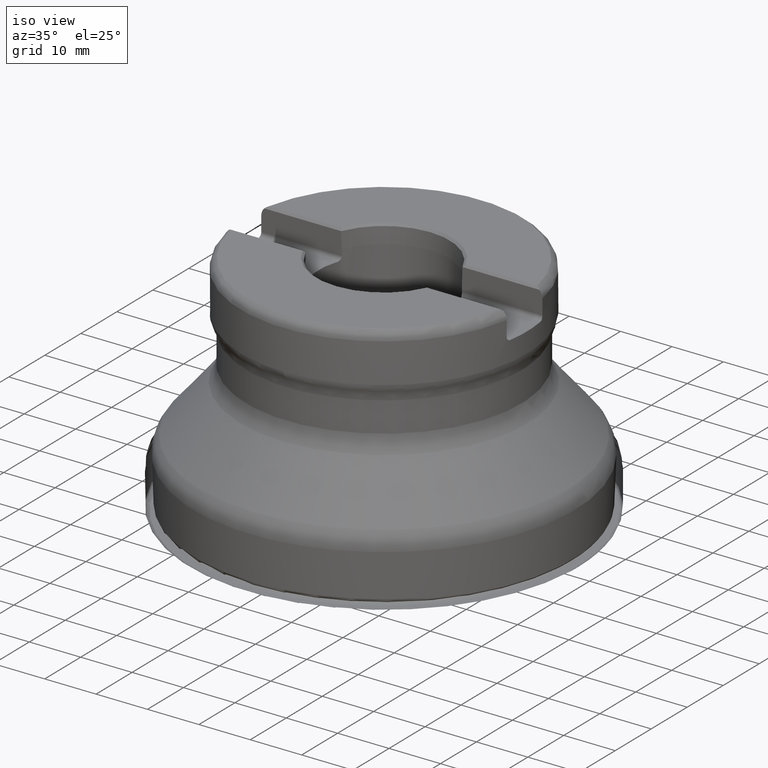
[diagram: clean part render]
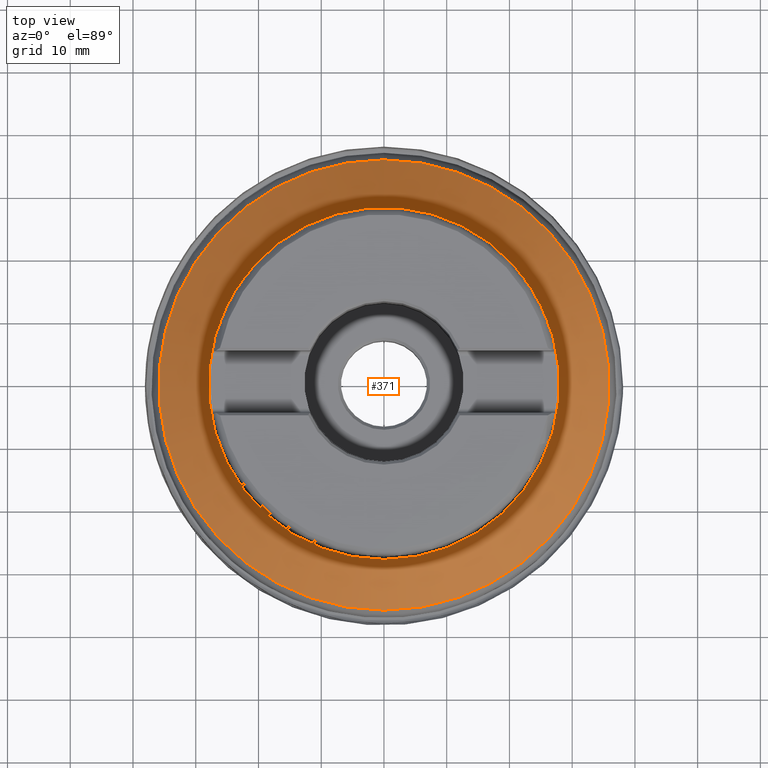
[diagram: tour spotlight — one face highlighted and labeled with its STEP entity id]
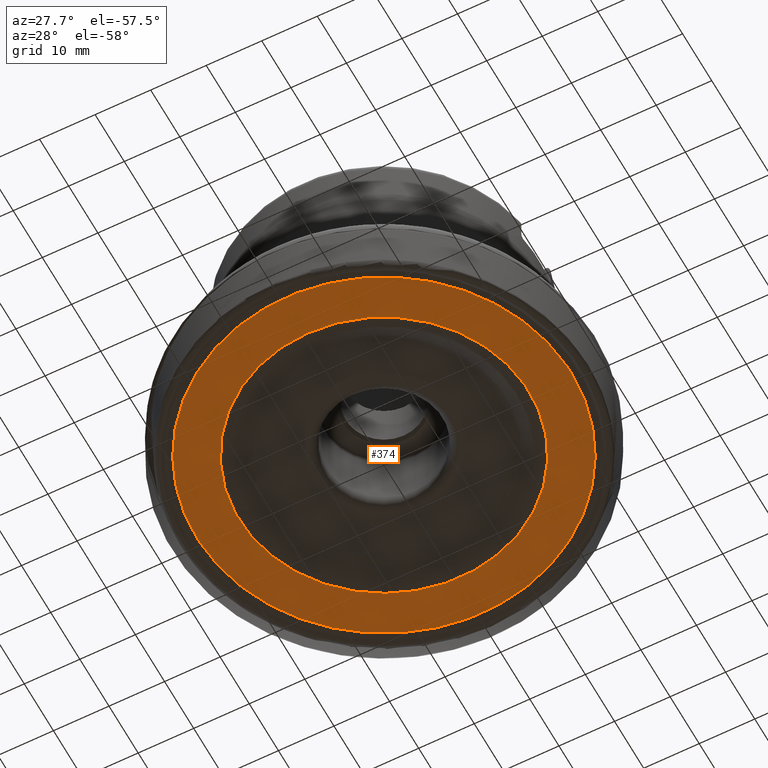
[diagram: tour spotlight — one face highlighted and labeled with its STEP entity id]
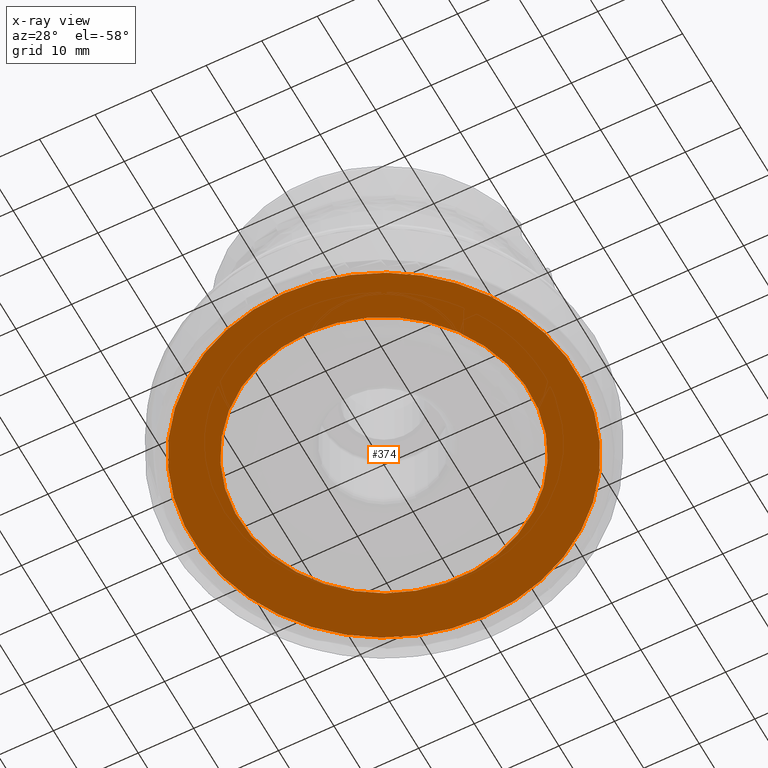
[diagram: x-ray of the same camera — body ghosted, this tour face saturated]
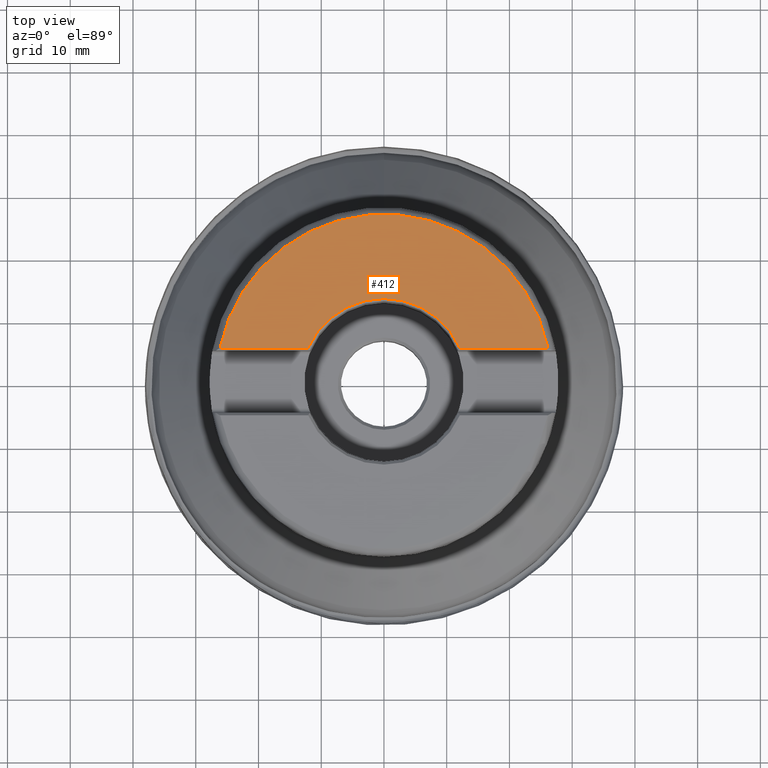
[diagram: tour spotlight — one face highlighted and labeled with its STEP entity id]
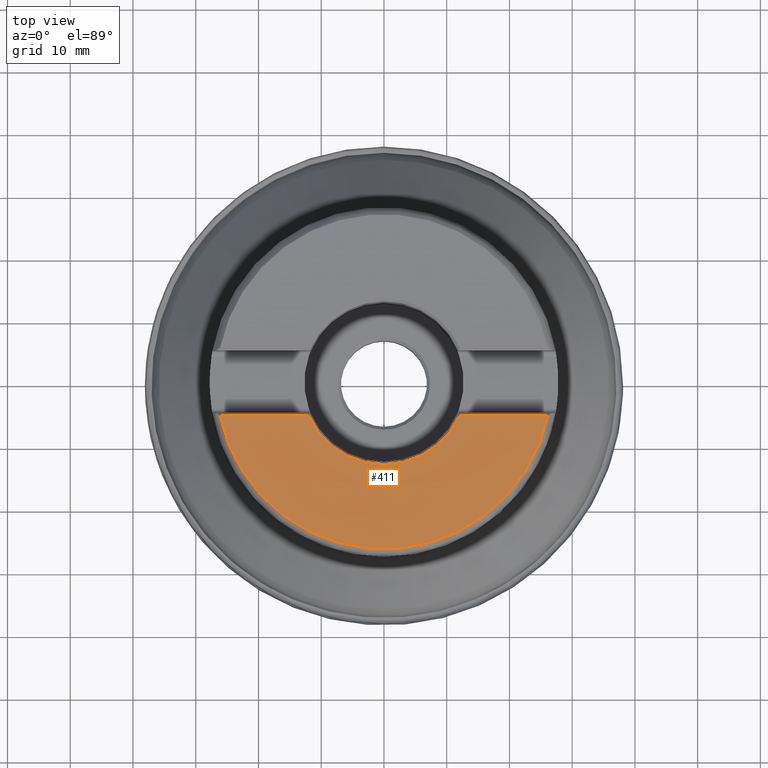
[diagram: tour spotlight — one face highlighted and labeled with its STEP entity id]
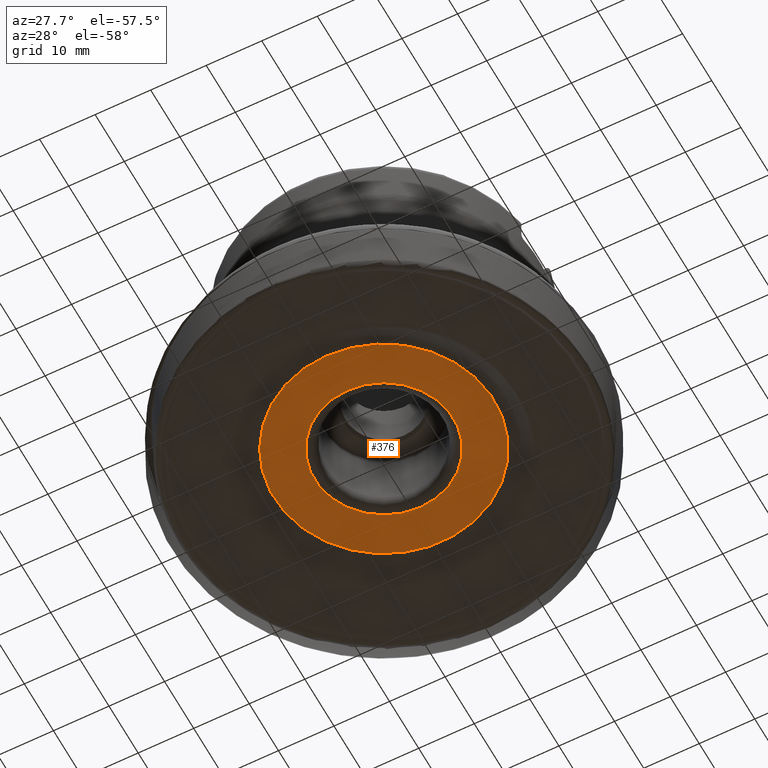
[diagram: tour spotlight — one face highlighted and labeled with its STEP entity id]
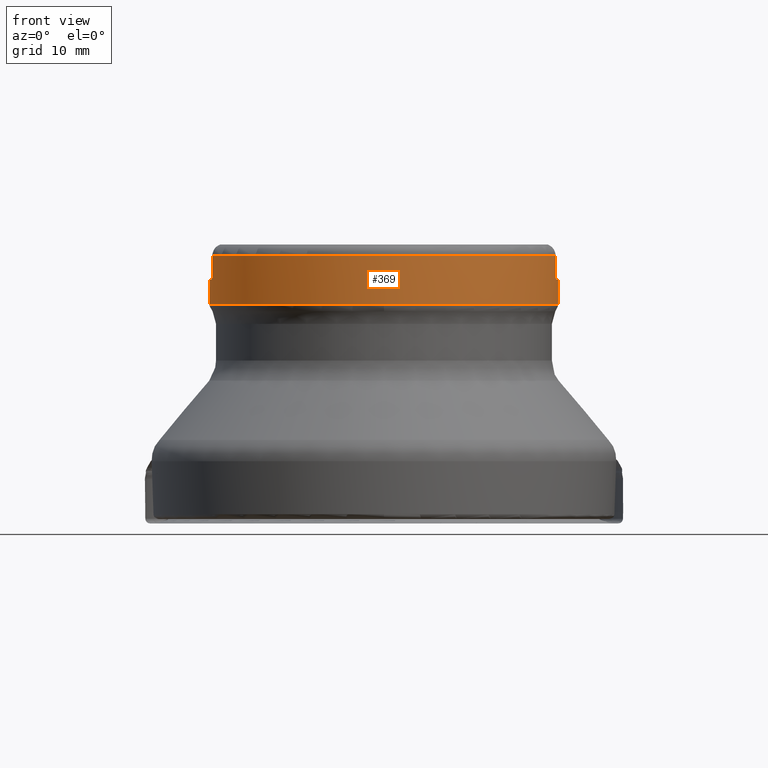
[diagram: tour spotlight — one face highlighted and labeled with its STEP entity id]
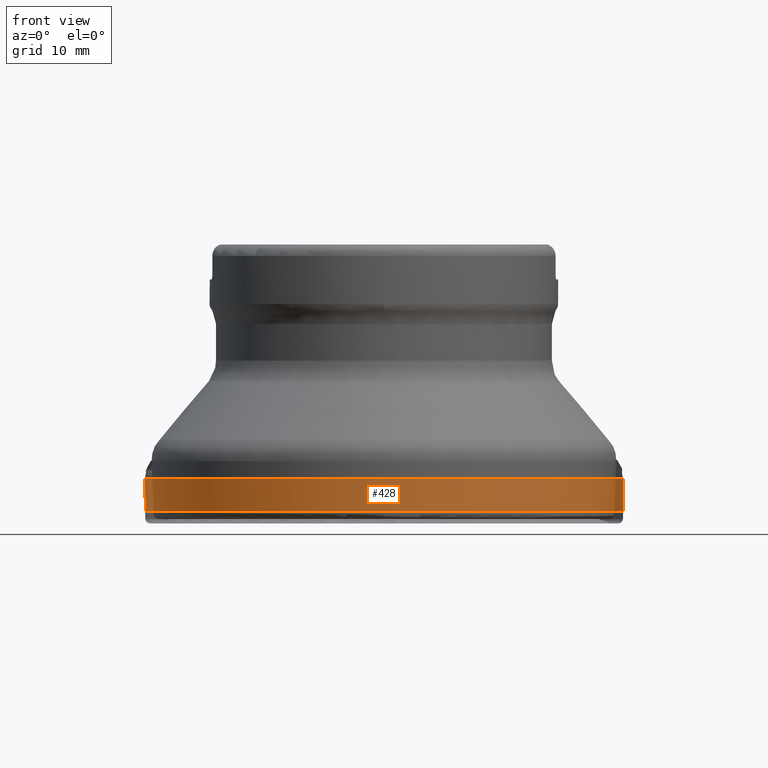
[diagram: tour spotlight — one face highlighted and labeled with its STEP entity id]
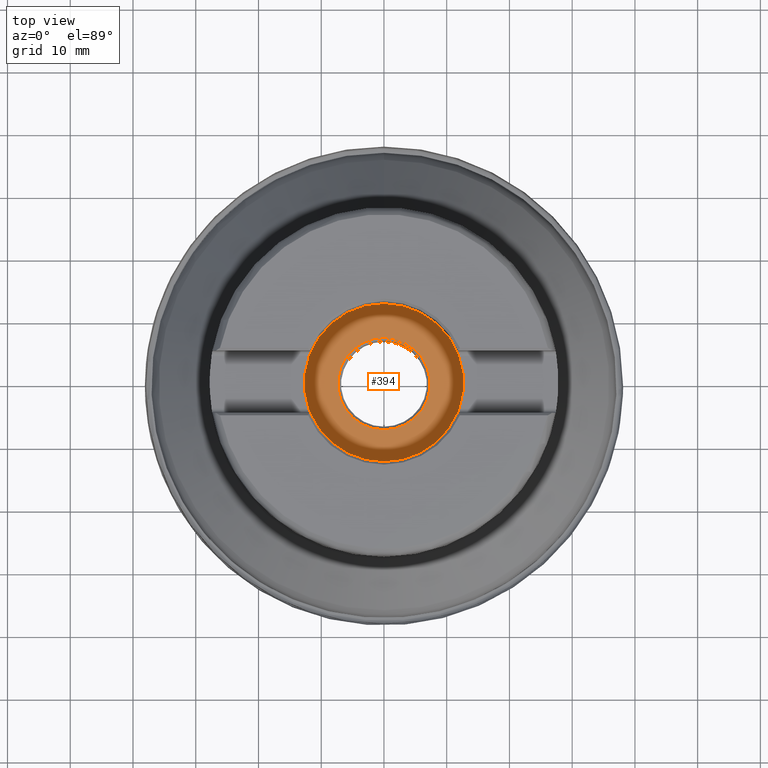
[diagram: tour spotlight — one face highlighted and labeled with its STEP entity id]
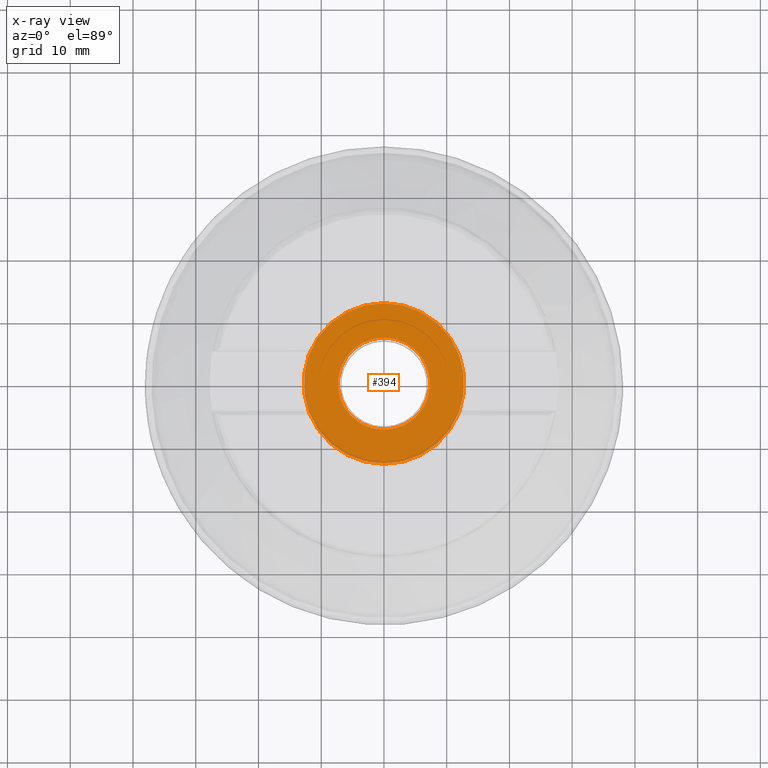
[diagram: x-ray of the same camera — body ghosted, this tour face saturated]
A machine part: a face-by-face anatomy tour. The part has 76 B-rep faces; the first image is the clean iso view, then the 8 largest visible faces are spotlighted one at a time (largest first), each with its STEP entity span.

Face 1 — top view, entity #371. In plain terms, the highlighted conical surface has half-angle 40 deg.
Definition (entity closure, byte-faithful):
#172=FACE_BOUND('',#486,.T.);
#173=FACE_BOUND('',#487,.T.);
#278=CONICAL_SURFACE('',#1224,26.8,40.);
#371=ADVANCED_FACE('',(#172,#173),#278,.T.);
#486=EDGE_LOOP('',(#726));
#487=EDGE_LOOP('',(#727));
#617=CIRCLE('',#1222,27.9697777844051);
#618=CIRCLE('',#1223,35.8883977884968);
#726=ORIENTED_EDGE('',*,*,#1051,.T.);
#727=ORIENTED_EDGE('',*,*,#1052,.T.);
#944=VERTEX_POINT('',#2070);
#945=VERTEX_POINT('',#2072);
#1051=EDGE_CURVE('',#944,#944,#617,.T.);
#1052=EDGE_CURVE('',#945,#945,#618,.T.);
#1222=AXIS2_PLACEMENT_3D('',#2069,#1386,#1387);
#1223=AXIS2_PLACEMENT_3D('',#2071,#1388,#1389);
#1224=AXIS2_PLACEMENT_3D('',#2073,#1390,#1391);
#1386=DIRECTION('',(0.,-1.17145536458252E-15,-1.));
#1387=DIRECTION('',(0.,1.,-1.11638436344648E-15));
#1388=DIRECTION('',(0.,1.17145536458252E-15,1.));
#1389=DIRECTION('',(0.,-1.,1.16007863234251E-15));
#1390=DIRECTION('',(0.,-1.17145536458252E-15,-1.));
#1391=DIRECTION('',(0.,1.,-1.09785064066006E-15));
#2069=CARTESIAN_POINT('',(0.,2.6657302222784E-14,22.7557131314892));
#2070=CARTESIAN_POINT('',(0.,27.9697777844051,22.7557131314891));
#2071=CARTESIAN_POINT('',(0.,1.56022265926484E-14,13.3186692932245));
#2072=CARTESIAN_POINT('',(0.,-35.8883977884968,13.3186692932246));
#2073=CARTESIAN_POINT('',(0.,2.82904127736588E-14,24.1498000085909));

Face 2 — auxiliary view, entity #374. An x-ray twin of the same camera follows (body ghosted, this face saturated) — the face is partly hidden behind the body. In plain terms, the highlighted planar face has unit normal (0, 0, 1).
Definition (entity closure, byte-faithful):
#178=FACE_BOUND('',#492,.T.);
#179=FACE_BOUND('',#493,.T.);
#290=PLANE('',#1233);
#374=ADVANCED_FACE('',(#178,#179),#290,.F.);
#492=EDGE_LOOP('',(#732));
#493=EDGE_LOOP('',(#733));
#623=CIRCLE('',#1231,26.1084733132147);
#624=CIRCLE('',#1232,34.484916865209);
#732=ORIENTED_EDGE('',*,*,#1057,.T.);
#733=ORIENTED_EDGE('',*,*,#1058,.T.);
#950=VERTEX_POINT('',#2085);
#951=VERTEX_POINT('',#2087);
#1057=EDGE_CURVE('',#950,#950,#623,.T.);
#1058=EDGE_CURVE('',#951,#951,#624,.T.);
#1231=AXIS2_PLACEMENT_3D('',#2084,#1404,#1405);
#1232=AXIS2_PLACEMENT_3D('',#2086,#1406,#1407);
#1233=AXIS2_PLACEMENT_3D('',#2088,#1408,#1409);
#1404=DIRECTION('',(0.,1.17145536458252E-15,1.));
#1405=DIRECTION('',(0.,-1.,1.17105664882428E-15));
#1406=DIRECTION('',(0.,-1.17145536458252E-15,-1.));
#1407=DIRECTION('',(0.,-1.,1.1695641017233E-15));
#1408=DIRECTION('',(0.,1.17145536458252E-15,1.));
#1409=DIRECTION('',(0.,-1.,1.17137202715334E-15));
#2084=CARTESIAN_POINT('',(0.,1.28860090104078E-15,1.1));
#2085=CARTESIAN_POINT('',(0.,-26.1084733132147,1.10000000000003));
#2086=CARTESIAN_POINT('',(0.,1.28860090104078E-15,1.1));
#2087=CARTESIAN_POINT('',(0.,-34.484916865209,1.10000000000004));
#2088=CARTESIAN_POINT('',(35.1047207679275,1.28860090104078E-15,1.1));

Face 3 — top view, entity #412. In plain terms, the highlighted planar face has unit normal (0, 0, 1).
Definition (entity closure, byte-faithful):
#302=PLANE('',#1293);
#307=LINE('',#1933,#334);
#309=LINE('',#1953,#336);
#334=VECTOR('',#1332,1.);
#336=VECTOR('',#1344,1.);
#412=ADVANCED_FACE('',(#473),#302,.T.);
#473=FACE_OUTER_BOUND('',#555,.T.);
#555=EDGE_LOOP('',(#857,#858,#859,#860));
#604=CIRCLE('',#1195,26.6717797887081);
#608=CIRCLE('',#1203,13.2368226782816);
#857=ORIENTED_EDGE('',*,*,#1007,.F.);
#858=ORIENTED_EDGE('',*,*,#1025,.F.);
#859=ORIENTED_EDGE('',*,*,#1022,.F.);
#860=ORIENTED_EDGE('',*,*,#1018,.F.);
#910=VERTEX_POINT('',#1855);
#911=VERTEX_POINT('',#1857);
#921=VERTEX_POINT('',#1934);
#924=VERTEX_POINT('',#1945);
#1007=EDGE_CURVE('',#910,#911,#604,.T.);
#1018=EDGE_CURVE('',#911,#921,#307,.T.);
#1022=EDGE_CURVE('',#921,#924,#608,.T.);
#1025=EDGE_CURVE('',#924,#910,#309,.T.);
#1195=AXIS2_PLACEMENT_3D('',#1856,#1320,#1321);
#1203=AXIS2_PLACEMENT_3D('',#1944,#1338,#1339);
#1293=AXIS2_PLACEMENT_3D('',#2288,#1540,#1541);
#1320=DIRECTION('',(0.,-1.17145536458252E-15,-1.));
#1321=DIRECTION('',(0.,-1.,1.30079319019515E-15));
#1332=DIRECTION('',(-1.,0.,0.));
#1338=DIRECTION('',(0.,1.17145536458252E-15,1.));
#1339=DIRECTION('',(0.,-1.,1.04842288403429E-15));
#1344=DIRECTION('',(-1.,0.,0.));
#1540=DIRECTION('',(0.,1.17145536458252E-15,1.));
#1541=DIRECTION('',(0.,-1.,1.17267306976032E-15));
#1855=CARTESIAN_POINT('',(-26.1266264967025,5.36499999999294,44.4499999999929));
#1856=CARTESIAN_POINT('',(0.,5.20711909556932E-14,44.45));
#1857=CARTESIAN_POINT('',(26.1266264966842,5.36500000000004,44.45));
#1933=CARTESIAN_POINT('',(-39.,5.36500000000004,44.45));
#1934=CARTESIAN_POINT('',(12.1008367320723,5.36500000000004,44.45));
#1944=CARTESIAN_POINT('',(0.,5.20711909556932E-14,44.45));
#1945=CARTESIAN_POINT('',(-12.1008367320723,5.36500000000004,44.45));
#1953=CARTESIAN_POINT('',(-39.,5.36500000000004,44.45));
#2288=CARTESIAN_POINT('',(0.,5.20711909556932E-14,44.45));

Face 4 — top view, entity #411. In plain terms, the highlighted planar face has unit normal (0, 0, 1).
Definition (entity closure, byte-faithful):
#301=PLANE('',#1292);
#311=LINE('',#1958,#338);
#313=LINE('',#1978,#340);
#338=VECTOR('',#1350,1.);
#340=VECTOR('',#1362,1.);
#411=ADVANCED_FACE('',(#472),#301,.T.);
#472=FACE_OUTER_BOUND('',#554,.T.);
#554=EDGE_LOOP('',(#853,#854,#855,#856));
#606=CIRCLE('',#1198,26.6717797887081);
#610=CIRCLE('',#1210,13.2368226782816);
#853=ORIENTED_EDGE('',*,*,#1013,.F.);
#854=ORIENTED_EDGE('',*,*,#1035,.F.);
#855=ORIENTED_EDGE('',*,*,#1032,.F.);
#856=ORIENTED_EDGE('',*,*,#1028,.F.);
#916=VERTEX_POINT('',#1898);
#917=VERTEX_POINT('',#1900);
#927=VERTEX_POINT('',#1959);
#930=VERTEX_POINT('',#1970);
#1013=EDGE_CURVE('',#916,#917,#606,.T.);
#1028=EDGE_CURVE('',#917,#927,#311,.T.);
#1032=EDGE_CURVE('',#927,#930,#610,.T.);
#1035=EDGE_CURVE('',#930,#916,#313,.T.);
#1198=AXIS2_PLACEMENT_3D('',#1899,#1326,#1327);
#1210=AXIS2_PLACEMENT_3D('',#1969,#1356,#1357);
#1292=AXIS2_PLACEMENT_3D('',#2287,#1538,#1539);
#1326=DIRECTION('',(0.,-1.17145536458252E-15,-1.));
#1327=DIRECTION('',(0.,-1.,1.30079319019515E-15));
#1350=DIRECTION('',(1.,0.,0.));
#1356=DIRECTION('',(0.,1.17145536458252E-15,1.));
#1357=DIRECTION('',(0.,-1.,1.04842288403429E-15));
#1362=DIRECTION('',(1.,0.,0.));
#1538=DIRECTION('',(0.,1.17145536458252E-15,1.));
#1539=DIRECTION('',(0.,-1.,1.17267306976032E-15));
#1898=CARTESIAN_POINT('',(26.1266264967107,-5.36499999998929,44.4499999999894));
#1899=CARTESIAN_POINT('',(0.,5.20711909556932E-14,44.45));
#1900=CARTESIAN_POINT('',(-26.1266264966842,-5.36499999999995,44.45));
#1958=CARTESIAN_POINT('',(-39.,-5.36499999999995,44.45));
#1959=CARTESIAN_POINT('',(-12.1008367320723,-5.36499999999995,44.45));
#1969=CARTESIAN_POINT('',(0.,5.20711909556932E-14,44.45));
#1970=CARTESIAN_POINT('',(12.1008367320723,-5.36499999999995,44.45));
#1978=CARTESIAN_POINT('',(-39.,-5.36499999999995,44.45));
#2287=CARTESIAN_POINT('',(0.,5.20711909556932E-14,44.45));

Face 5 — auxiliary view, entity #376. In plain terms, the highlighted planar face has unit normal (0, 0, 1).
Definition (entity closure, byte-faithful):
#182=FACE_BOUND('',#496,.T.);
#183=FACE_BOUND('',#497,.T.);
#291=PLANE('',#1239);
#376=ADVANCED_FACE('',(#182,#183),#291,.F.);
#496=EDGE_LOOP('',(#736));
#497=EDGE_LOOP('',(#737));
#627=CIRCLE('',#1237,19.8169635378171);
#628=CIRCLE('',#1238,12.5);
#736=ORIENTED_EDGE('',*,*,#1061,.T.);
#737=ORIENTED_EDGE('',*,*,#1062,.T.);
#954=VERTEX_POINT('',#2095);
#955=VERTEX_POINT('',#2097);
#1061=EDGE_CURVE('',#954,#954,#627,.T.);
#1062=EDGE_CURVE('',#955,#955,#628,.T.);
#1237=AXIS2_PLACEMENT_3D('',#2094,#1416,#1417);
#1238=AXIS2_PLACEMENT_3D('',#2096,#1418,#1419);
#1239=AXIS2_PLACEMENT_3D('',#2098,#1420,#1421);
#1416=DIRECTION('',(0.,-1.17145536458252E-15,-1.));
#1417=DIRECTION('',(0.,-1.,1.18175354569313E-15));
#1418=DIRECTION('',(0.,1.17145536458252E-15,1.));
#1419=DIRECTION('',(0.,-1.,1.17961196366423E-15));
#1420=DIRECTION('',(0.,1.17145536458252E-15,1.));
#1421=DIRECTION('',(0.,-1.,1.17137202715334E-15));
#2094=CARTESIAN_POINT('',(0.,3.51436609374757E-15,3.));
#2095=CARTESIAN_POINT('',(0.,-19.8169635378171,3.00000000000002));
#2096=CARTESIAN_POINT('',(0.,3.51436609374757E-15,3.));
#2097=CARTESIAN_POINT('',(0.,-12.5,3.00000000000002));
#2098=CARTESIAN_POINT('',(20.9254368510318,3.51436609374757E-15,3.));

Face 6 — front view, entity #369. In plain terms, the highlighted cylindrical surface (bore or boss wall) has radius 27.8 mm, axis along (0, -0, -1).
Definition (entity closure, byte-faithful):
#158=CYLINDRICAL_SURFACE('',#1218,27.8);
#168=FACE_BOUND('',#482,.T.);
#169=FACE_BOUND('',#483,.T.);
#315=LINE('',#1985,#342);
#316=LINE('',#2023,#343);
#317=LINE('',#2024,#344);
#318=LINE('',#2062,#345);
#342=VECTOR('',#1370,1.);
#343=VECTOR('',#1373,1.);
#344=VECTOR('',#1374,1.);
#345=VECTOR('',#1377,1.);
#369=ADVANCED_FACE('',(#168,#169),#158,.T.);
#482=EDGE_LOOP('',(#711));
#483=EDGE_LOOP('',(#712,#713,#714,#715,#716,#717,#718,#719,#720,#721,#722,
#723));
#605=CIRCLE('',#1196,27.8);
#607=CIRCLE('',#1199,27.8);
#612=CIRCLE('',#1215,27.8);
#613=CIRCLE('',#1216,27.8);
#614=CIRCLE('',#1217,27.8);
#711=ORIENTED_EDGE('',*,*,#1038,.T.);
#712=ORIENTED_EDGE('',*,*,#1039,.F.);
#713=ORIENTED_EDGE('',*,*,#1040,.T.);
#714=ORIENTED_EDGE('',*,*,#1041,.F.);
#715=ORIENTED_EDGE('',*,*,#1042,.T.);
#716=ORIENTED_EDGE('',*,*,#1043,.F.);
#717=ORIENTED_EDGE('',*,*,#1016,.T.);
#718=ORIENTED_EDGE('',*,*,#1044,.F.);
#719=ORIENTED_EDGE('',*,*,#1045,.T.);
#720=ORIENTED_EDGE('',*,*,#1046,.F.);
#721=ORIENTED_EDGE('',*,*,#1047,.T.);
#722=ORIENTED_EDGE('',*,*,#1048,.F.);
#723=ORIENTED_EDGE('',*,*,#1010,.T.);
#913=VERTEX_POINT('',#1876);
#914=VERTEX_POINT('',#1878);
#919=VERTEX_POINT('',#1919);
#920=VERTEX_POINT('',#1921);
#933=VERTEX_POINT('',#1984);
#934=VERTEX_POINT('',#1986);
#935=VERTEX_POINT('',#2003);
#936=VERTEX_POINT('',#2005);
#937=VERTEX_POINT('',#2022);
#938=VERTEX_POINT('',#2025);
#939=VERTEX_POINT('',#2042);
#940=VERTEX_POINT('',#2044);
#941=VERTEX_POINT('',#2061);
#1010=EDGE_CURVE('',#914,#913,#605,.T.);
#1016=EDGE_CURVE('',#920,#919,#607,.T.);
#1038=EDGE_CURVE('',#933,#933,#612,.T.);
#1039=EDGE_CURVE('',#934,#913,#315,.T.);
#1040=EDGE_CURVE('',#934,#935,#1161,.T.);
#1041=EDGE_CURVE('',#936,#935,#613,.T.);
#1042=EDGE_CURVE('',#936,#937,#1162,.T.);
#1043=EDGE_CURVE('',#920,#937,#316,.T.);
#1044=EDGE_CURVE('',#938,#919,#317,.T.);
#1045=EDGE_CURVE('',#938,#939,#1163,.T.);
#1046=EDGE_CURVE('',#940,#939,#614,.T.);
#1047=EDGE_CURVE('',#940,#941,#1164,.T.);
#1048=EDGE_CURVE('',#914,#941,#318,.T.);
#1161=B_SPLINE_CURVE_WITH_KNOTS('',3,(#1987,#1988,#1989,#1990,#1991,#1992,
#1993,#1994,#1995,#1996,#1997,#1998,#1999,#2000,#2001,#2002),
 .UNSPECIFIED.,.F.,.F.,(4,3,3,3,3,4),(0.,0.211069163491889,0.422033858925781,
0.634635847700906,0.850410504468207,1.),.UNSPECIFIED.);
#1162=B_SPLINE_CURVE_WITH_KNOTS('',3,(#2006,#2007,#2008,#2009,#2010,#2011,
#2012,#2013,#2014,#2015,#2016,#2017,#2018,#2019,#2020,#2021),
 .UNSPECIFIED.,.F.,.F.,(4,3,3,3,3,4),(0.,0.218349211184795,0.43673649299723,
0.654405007356203,0.869343251864531,1.),.UNSPECIFIED.);
#1163=B_SPLINE_CURVE_WITH_KNOTS('',3,(#2026,#2027,#2028,#2029,#2030,#2031,
#2032,#2033,#2034,#2035,#2036,#2037,#2038,#2039,#2040,#2041),
 .UNSPECIFIED.,.F.,.F.,(4,3,3,3,3,4),(0.,0.211069163491889,0.42203385892578,
0.634635847700905,0.850410504468206,1.),.UNSPECIFIED.);
#1164=B_SPLINE_CURVE_WITH_KNOTS('',3,(#2045,#2046,#2047,#2048,#2049,#2050,
#2051,#2052,#2053,#2054,#2055,#2056,#2057,#2058,#2059,#2060),
 .UNSPECIFIED.,.F.,.F.,(4,3,3,3,3,4),(0.,0.218349211184793,0.436736492997223,
0.654405007356197,0.869343251864531,1.),.UNSPECIFIED.);
#1196=AXIS2_PLACEMENT_3D('',#1877,#1322,#1323);
#1199=AXIS2_PLACEMENT_3D('',#1920,#1328,#1329);
#1215=AXIS2_PLACEMENT_3D('',#1983,#1368,#1369);
#1216=AXIS2_PLACEMENT_3D('',#2004,#1371,#1372);
#1217=AXIS2_PLACEMENT_3D('',#2043,#1375,#1376);
#1218=AXIS2_PLACEMENT_3D('',#2063,#1378,#1379);
#1322=DIRECTION('',(0.,-1.17145536458252E-15,-1.));
#1323=DIRECTION('',(0.,1.,-1.24800250070274E-15));
#1328=DIRECTION('',(0.,-1.17145536458252E-15,-1.));
#1329=DIRECTION('',(0.,1.,-1.24800250070274E-15));
#1368=DIRECTION('',(0.,1.17145536458252E-15,1.));
#1369=DIRECTION('',(0.,-1.,1.24800250070274E-15));
#1370=DIRECTION('',(0.,1.17145536458252E-15,1.));
#1371=DIRECTION('',(0.,1.17145536458252E-15,1.));
#1372=DIRECTION('',(0.,-1.,1.24800250070274E-15));
#1373=DIRECTION('',(0.,-1.17145536458252E-15,-1.));
#1374=DIRECTION('',(0.,1.17145536458252E-15,1.));
#1375=DIRECTION('',(0.,1.17145536458252E-15,1.));
#1376=DIRECTION('',(0.,-1.,1.24800250070274E-15));
#1377=DIRECTION('',(0.,-1.17145536458252E-15,-1.));
#1378=DIRECTION('',(0.,-1.17145536458252E-15,-1.));
#1379=DIRECTION('',(0.,1.,-1.17145536458252E-15));
#1876=CARTESIAN_POINT('',(27.3530395934346,4.96500000000005,42.65));
#1877=CARTESIAN_POINT('',(0.,4.99625712994447E-14,42.65));
#1878=CARTESIAN_POINT('',(-27.3530395934346,4.96500000000005,42.65));
#1919=CARTESIAN_POINT('',(-27.3530395934346,-4.96499999999995,42.65));
#1920=CARTESIAN_POINT('',(0.,4.99625712994447E-14,42.65));
#1921=CARTESIAN_POINT('',(27.3530395934346,-4.96499999999995,42.65));
#1983=CARTESIAN_POINT('',(0.,4.09756660999428E-14,34.9784271247462));
#1984=CARTESIAN_POINT('',(0.,-27.8,34.9784271247462));
#1985=CARTESIAN_POINT('',(27.3530395934346,4.96500000000001,-4.8592867675717E-15));
#1986=CARTESIAN_POINT('',(27.3530395934346,4.96500000000004,39.69));
#1987=CARTESIAN_POINT('',(27.3530395934346,4.96500000000004,39.69));
#1988=CARTESIAN_POINT('',(27.3530395934346,4.96500000000004,39.6014828198));
#1989=CARTESIAN_POINT('',(27.355795884701,4.94987822759739,39.5117461934698));
#1990=CARTESIAN_POINT('',(27.3609958358265,4.92096605067377,39.4282456681757));
#1991=CARTESIAN_POINT('',(27.3661943475718,4.89206187682854,39.3447682563695));
#1992=CARTESIAN_POINT('',(27.3739670457912,4.8486049304503,39.26523560333));
#1993=CARTESIAN_POINT('',(27.3834781160581,4.79428057870725,39.1960304126144));
#1994=CARTESIAN_POINT('',(27.3930635749251,4.73953134181815,39.126283949769));
#1995=CARTESIAN_POINT('',(27.4046620047054,4.67227668630608,39.0651246437668));
#1996=CARTESIAN_POINT('',(27.4171151867849,4.59802075186354,39.0173239795744));
#1997=CARTESIAN_POINT('',(27.429751472875,4.52267300335135,38.9688204835061));
#1998=CARTESIAN_POINT('',(27.4436022201549,4.4380687156529,38.9327464023427));
#1999=CARTESIAN_POINT('',(27.4573867560448,4.35108176537469,38.9119424336239));
#2000=CARTESIAN_POINT('',(27.4670123714279,4.29033957329675,38.8974152124734));
#2001=CARTESIAN_POINT('',(27.4767612980382,4.22747937631335,38.89));
#2002=CARTESIAN_POINT('',(27.4862288246314,4.16500000000004,38.89));
#2003=CARTESIAN_POINT('',(27.4862288246314,4.16500000000004,38.89));
#2004=CARTESIAN_POINT('',(0.,4.55578991286144E-14,38.89));
#2005=CARTESIAN_POINT('',(27.4862288246314,-4.16499999999995,38.89));
#2006=CARTESIAN_POINT('',(27.4862288246314,-4.16499999999995,38.89));
#2007=CARTESIAN_POINT('',(27.472509685048,-4.25553719324552,38.89));
#2008=CARTESIAN_POINT('',(27.4581298000349,-4.34724928567559,38.9057930579513));
#2009=CARTESIAN_POINT('',(27.4443505378966,-4.43256399311454,38.9360706202909));
#2010=CARTESIAN_POINT('',(27.4305700953269,-4.5178860092289,38.9663507764256));
#2011=CARTESIAN_POINT('',(27.4170138199474,-4.59918038398189,39.011966124374));
#2012=CARTESIAN_POINT('',(27.4050099640804,-4.66962834373955,39.0692341546971));
#2013=CARTESIAN_POINT('',(27.393047436125,-4.73983375917746,39.1263050176997));
#2014=CARTESIAN_POINT('',(27.3823031090762,-4.80122665826448,39.1965685093854));
#2015=CARTESIAN_POINT('',(27.3739371531161,-4.84846003770786,39.2742087340308));
#2016=CARTESIAN_POINT('',(27.3656754733331,-4.89510468392516,39.3508812239837));
#2017=CARTESIAN_POINT('',(27.3595133791822,-4.92923764985327,39.4369146745888));
#2018=CARTESIAN_POINT('',(27.3561545553782,-4.94780839789294,39.5250423927543));
#2019=CARTESIAN_POINT('',(27.3540938691232,-4.95920181638232,39.5791100033551));
#2020=CARTESIAN_POINT('',(27.3530395934346,-4.96499999999997,39.6347065742715));
#2021=CARTESIAN_POINT('',(27.3530395934346,-4.96499999999995,39.69));
#2022=CARTESIAN_POINT('',(27.3530395934346,-4.96499999999995,39.69));
#2023=CARTESIAN_POINT('',(27.3530395934346,-4.96499999999998,3.42380309120087E-15));
#2024=CARTESIAN_POINT('',(-27.3530395934346,-4.96499999999998,3.42380309120087E-15));
#2025=CARTESIAN_POINT('',(-27.3530395934346,-4.96499999999995,39.69));
#2026=CARTESIAN_POINT('',(-27.3530395934346,-4.96499999999995,39.69));
#2027=CARTESIAN_POINT('',(-27.3530395934346,-4.96499999999995,39.6014828198));
#2028=CARTESIAN_POINT('',(-27.355795884701,-4.9498782275973,39.5117461934698));
#2029=CARTESIAN_POINT('',(-27.3609958358265,-4.92096605067369,39.4282456681757));
#2030=CARTESIAN_POINT('',(-27.3661943475718,-4.89206187682846,39.3447682563695));
#2031=CARTESIAN_POINT('',(-27.3739670457912,-4.84860493045021,39.26523560333));
#2032=CARTESIAN_POINT('',(-27.3834781160581,-4.79428057870716,39.1960304126144));
#2033=CARTESIAN_POINT('',(-27.3930635749251,-4.73953134181806,39.126283949769));
#2034=CARTESIAN_POINT('',(-27.4046620047054,-4.67227668630599,39.0651246437668));
#2035=CARTESIAN_POINT('',(-27.4171151867849,-4.59802075186345,39.0173239795744));
#2036=CARTESIAN_POINT('',(-27.429751472875,-4.52267300335126,38.9688204835061));
#2037=CARTESIAN_POINT('',(-27.4436022201549,-4.43806871565281,38.9327464023427));
#2038=CARTESIAN_POINT('',(-27.4573867560448,-4.3510817653746,38.9119424336239));
#2039=CARTESIAN_POINT('',(-27.4670123714279,-4.29033957329666,38.8974152124734));
#2040=CARTESIAN_POINT('',(-27.4767612980382,-4.22747937631326,38.89));
#2041=CARTESIAN_POINT('',(-27.4862288246314,-4.16499999999995,38.89));
#2042=CARTESIAN_POINT('',(-27.4862288246314,-4.16499999999995,38.89));
#2043=CARTESIAN_POINT('',(0.,4.55578991286144E-14,38.89));
#2044=CARTESIAN_POINT('',(-27.4862288246314,4.16500000000004,38.89));
#2045=CARTESIAN_POINT('',(-27.4862288246314,4.16500000000004,38.89));
#2046=CARTESIAN_POINT('',(-27.472509685048,4.25553719324561,38.89));
#2047=CARTESIAN_POINT('',(-27.4581298000349,4.34724928567568,38.9057930579513));
#2048=CARTESIAN_POINT('',(-27.4443505378966,4.43256399311463,38.9360706202909));
#2049=CARTESIAN_POINT('',(-27.4305700953269,4.51788600922899,38.9663507764256));
#2050=CARTESIAN_POINT('',(-27.4170138199474,4.59918038398198,39.011966124374));
#2051=CARTESIAN_POINT('',(-27.4050099640804,4.66962834373963,39.0692341546971));
#2052=CARTESIAN_POINT('',(-27.393047436125,4.73983375917755,39.1263050176997));
#2053=CARTESIAN_POINT('',(-27.3823031090762,4.80122665826457,39.1965685093853));
#2054=CARTESIAN_POINT('',(-27.3739371531161,4.84846003770795,39.2742087340307));
#2055=CARTESIAN_POINT('',(-27.3656754733331,4.89510468392525,39.3508812239837));
#2056=CARTESIAN_POINT('',(-27.3595133791822,4.92923764985336,39.4369146745888));
#2057=CARTESIAN_POINT('',(-27.3561545553782,4.94780839789303,39.5250423927543));
#2058=CARTESIAN_POINT('',(-27.3540938691232,4.95920181638241,39.5791100033551));
#2059=CARTESIAN_POINT('',(-27.3530395934346,4.96500000000004,39.6347065742715));
#2060=CARTESIAN_POINT('',(-27.3530395934346,4.96500000000004,39.69));
#2061=CARTESIAN_POINT('',(-27.3530395934346,4.96500000000004,39.69));
#2062=CARTESIAN_POINT('',(-27.3530395934346,4.96500000000001,-4.8592867675717E-15));
#2063=CARTESIAN_POINT('',(0.,0.,0.));

Face 7 — front view, entity #428. In plain terms, the highlighted face is a SurfaceOfRevolution surface.
Definition (entity closure, byte-faithful):
#123=SURFACE_OF_REVOLUTION('',#1186,#147);
#147=AXIS1_PLACEMENT('',#2422,#1593);
#258=FACE_BOUND('',#586,.T.);
#259=FACE_BOUND('',#587,.T.);
#428=ADVANCED_FACE('',(#258,#259),#123,.F.);
#586=EDGE_LOOP('',(#891));
#587=EDGE_LOOP('',(#892));
#662=CIRCLE('',#1309,38.0999999999999);
#663=CIRCLE('',#1310,38.1143761820818);
#891=ORIENTED_EDGE('',*,*,#1116,.T.);
#892=ORIENTED_EDGE('',*,*,#1117,.F.);
#997=VERTEX_POINT('',#2407);
#998=VERTEX_POINT('',#2415);
#1116=EDGE_CURVE('',#997,#997,#662,.T.);
#1117=EDGE_CURVE('',#998,#998,#663,.T.);
#1186=B_SPLINE_CURVE_WITH_KNOTS('',5,(#2416,#2417,#2418,#2419,#2420,#2421),
 .UNSPECIFIED.,.F.,.F.,(6,6),(0.,1.),.UNSPECIFIED.);
#1309=AXIS2_PLACEMENT_3D('',#2406,#1588,#1589);
#1310=AXIS2_PLACEMENT_3D('',#2414,#1591,#1592);
#1588=DIRECTION('',(0.,0.,1.));
#1589=DIRECTION('',(1.,0.,0.));
#1591=DIRECTION('',(0.,0.,1.));
#1592=DIRECTION('',(1.,0.,0.));
#1593=DIRECTION('',(0.,0.,1.));
#2406=CARTESIAN_POINT('',(0.,0.,7.12956620558486));
#2407=CARTESIAN_POINT('',(38.0999999999999,0.,7.12956620558486));
#2414=CARTESIAN_POINT('',(0.,0.,1.90738317009832));
#2415=CARTESIAN_POINT('',(38.1143761820818,0.,1.90738317009832));
#2416=CARTESIAN_POINT('',(37.9226125228729,-3.81852458195027,1.90738317127625));
#2417=CARTESIAN_POINT('',(37.9600928337852,-3.53872882155154,2.95140919602121));
#2418=CARTESIAN_POINT('',(37.9888547645613,-3.25887011172212,3.99573167627597));
#2419=CARTESIAN_POINT('',(38.0089459643438,-2.97897347494825,5.04025755140075));
#2420=CARTESIAN_POINT('',(38.0203766679349,-2.6990625641305,6.08489913935155));
#2421=CARTESIAN_POINT('',(38.0231200225426,-2.41916178692447,7.12956620558486));
#2422=CARTESIAN_POINT('',(0.,0.,0.));

Face 8 — top view, entity #394. An x-ray twin of the same camera follows (body ghosted, this face saturated) — the face is partly hidden behind the body. In plain terms, the highlighted planar face has unit normal (0, 0, 1).
Definition (entity closure, byte-faithful):
#194=FACE_BOUND('',#520,.T.);
#195=FACE_BOUND('',#521,.T.);
#299=PLANE('',#1271);
#394=ADVANCED_FACE('',(#194,#195),#299,.T.);
#520=EDGE_LOOP('',(#819));
#521=EDGE_LOOP('',(#820));
#641=CIRCLE('',#1269,12.8);
#642=CIRCLE('',#1270,7.35);
#819=ORIENTED_EDGE('',*,*,#1095,.T.);
#820=ORIENTED_EDGE('',*,*,#1096,.T.);
#976=VERTEX_POINT('',#2259);
#977=VERTEX_POINT('',#2261);
#1095=EDGE_CURVE('',#976,#976,#641,.T.);
#1096=EDGE_CURVE('',#977,#977,#642,.T.);
#1269=AXIS2_PLACEMENT_3D('',#2258,#1492,#1493);
#1270=AXIS2_PLACEMENT_3D('',#2260,#1494,#1495);
#1271=AXIS2_PLACEMENT_3D('',#2262,#1496,#1497);
#1492=DIRECTION('',(0.,1.17145536458252E-15,1.));
#1493=DIRECTION('',(0.,-1.,1.0842021724855E-15));
#1494=DIRECTION('',(0.,-1.17145536458252E-15,-1.));
#1495=DIRECTION('',(0.,-1.,9.44067197810507E-16));
#1496=DIRECTION('',(0.,1.17145536458252E-15,1.));
#1497=DIRECTION('',(0.,-1.,1.17267306976032E-15));
#2258=CARTESIAN_POINT('',(0.,2.97549662603961E-14,25.4));
#2259=CARTESIAN_POINT('',(0.,-12.8,25.4));
#2260=CARTESIAN_POINT('',(0.,2.97549662603961E-14,25.4));
#2261=CARTESIAN_POINT('',(0.,-7.34999999999997,25.4));
#2262=CARTESIAN_POINT('',(6.85,2.97549662603961E-14,25.4));